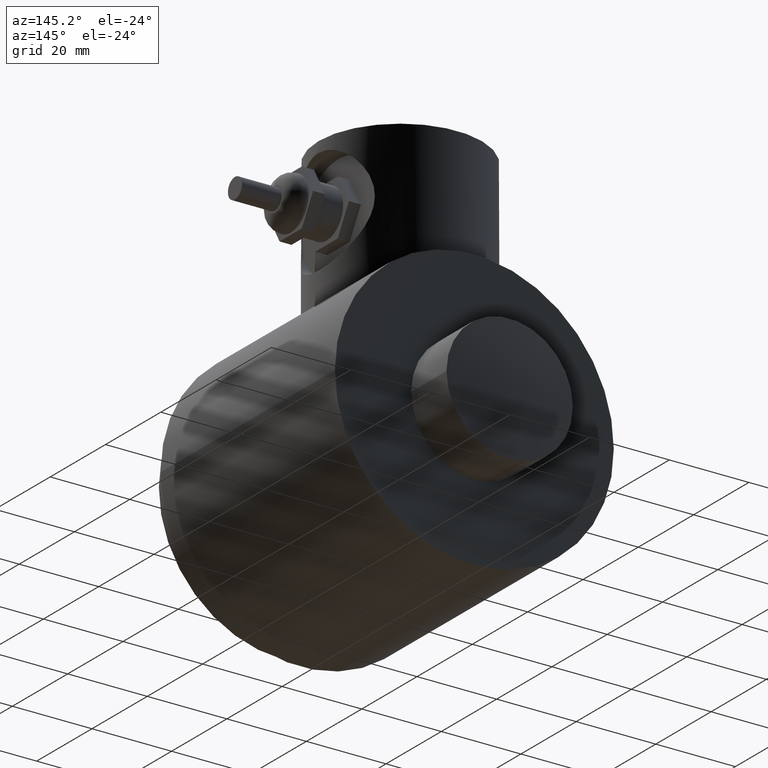
[diagram: clean part render]
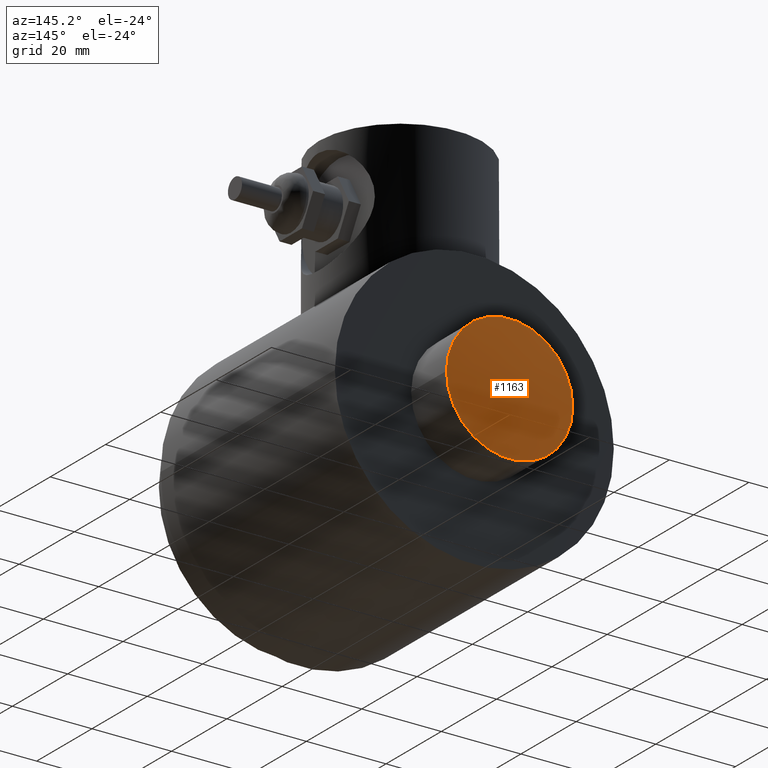
[diagram: same view with one face highlighted and labeled with its STEP entity id]
A machine part, auxiliary view. The second image highlights one B-rep face of the part: STEP entity #1163.
In plain terms, the highlighted spherical surface has radius 152.4 mm.
Its self-contained STEP definition (entity closure, byte-faithful):
#15=SPHERICAL_SURFACE('',#1268,6.);
#190=FACE_OUTER_BOUND('',#267,.T.);
#267=EDGE_LOOP('',(#1037));
#450=CIRCLE('',#1269,0.625);
#560=VERTEX_POINT('',#4952);
#722=EDGE_CURVE('',#560,#560,#450,.T.);
#1037=ORIENTED_EDGE('',*,*,#722,.F.);
#1163=ADVANCED_FACE('',(#190),#15,.T.);
#1268=AXIS2_PLACEMENT_3D('',#4951,#1522,#1523);
#1269=AXIS2_PLACEMENT_3D('',#4953,#1524,#1525);
#1522=DIRECTION('center_axis',(6.12323399573677E-17,0.,1.));
#1523=DIRECTION('ref_axis',(1.,0.,0.));
#1524=DIRECTION('center_axis',(0.,-1.,0.));
#1525=DIRECTION('ref_axis',(-1.,0.,0.));
#4951=CARTESIAN_POINT('Origin',(0.,-2.72834645669291,0.));
#4952=CARTESIAN_POINT('',(0.625,3.23901267444709,0.));
#4953=CARTESIAN_POINT('Origin',(0.,3.23901267444709,0.));